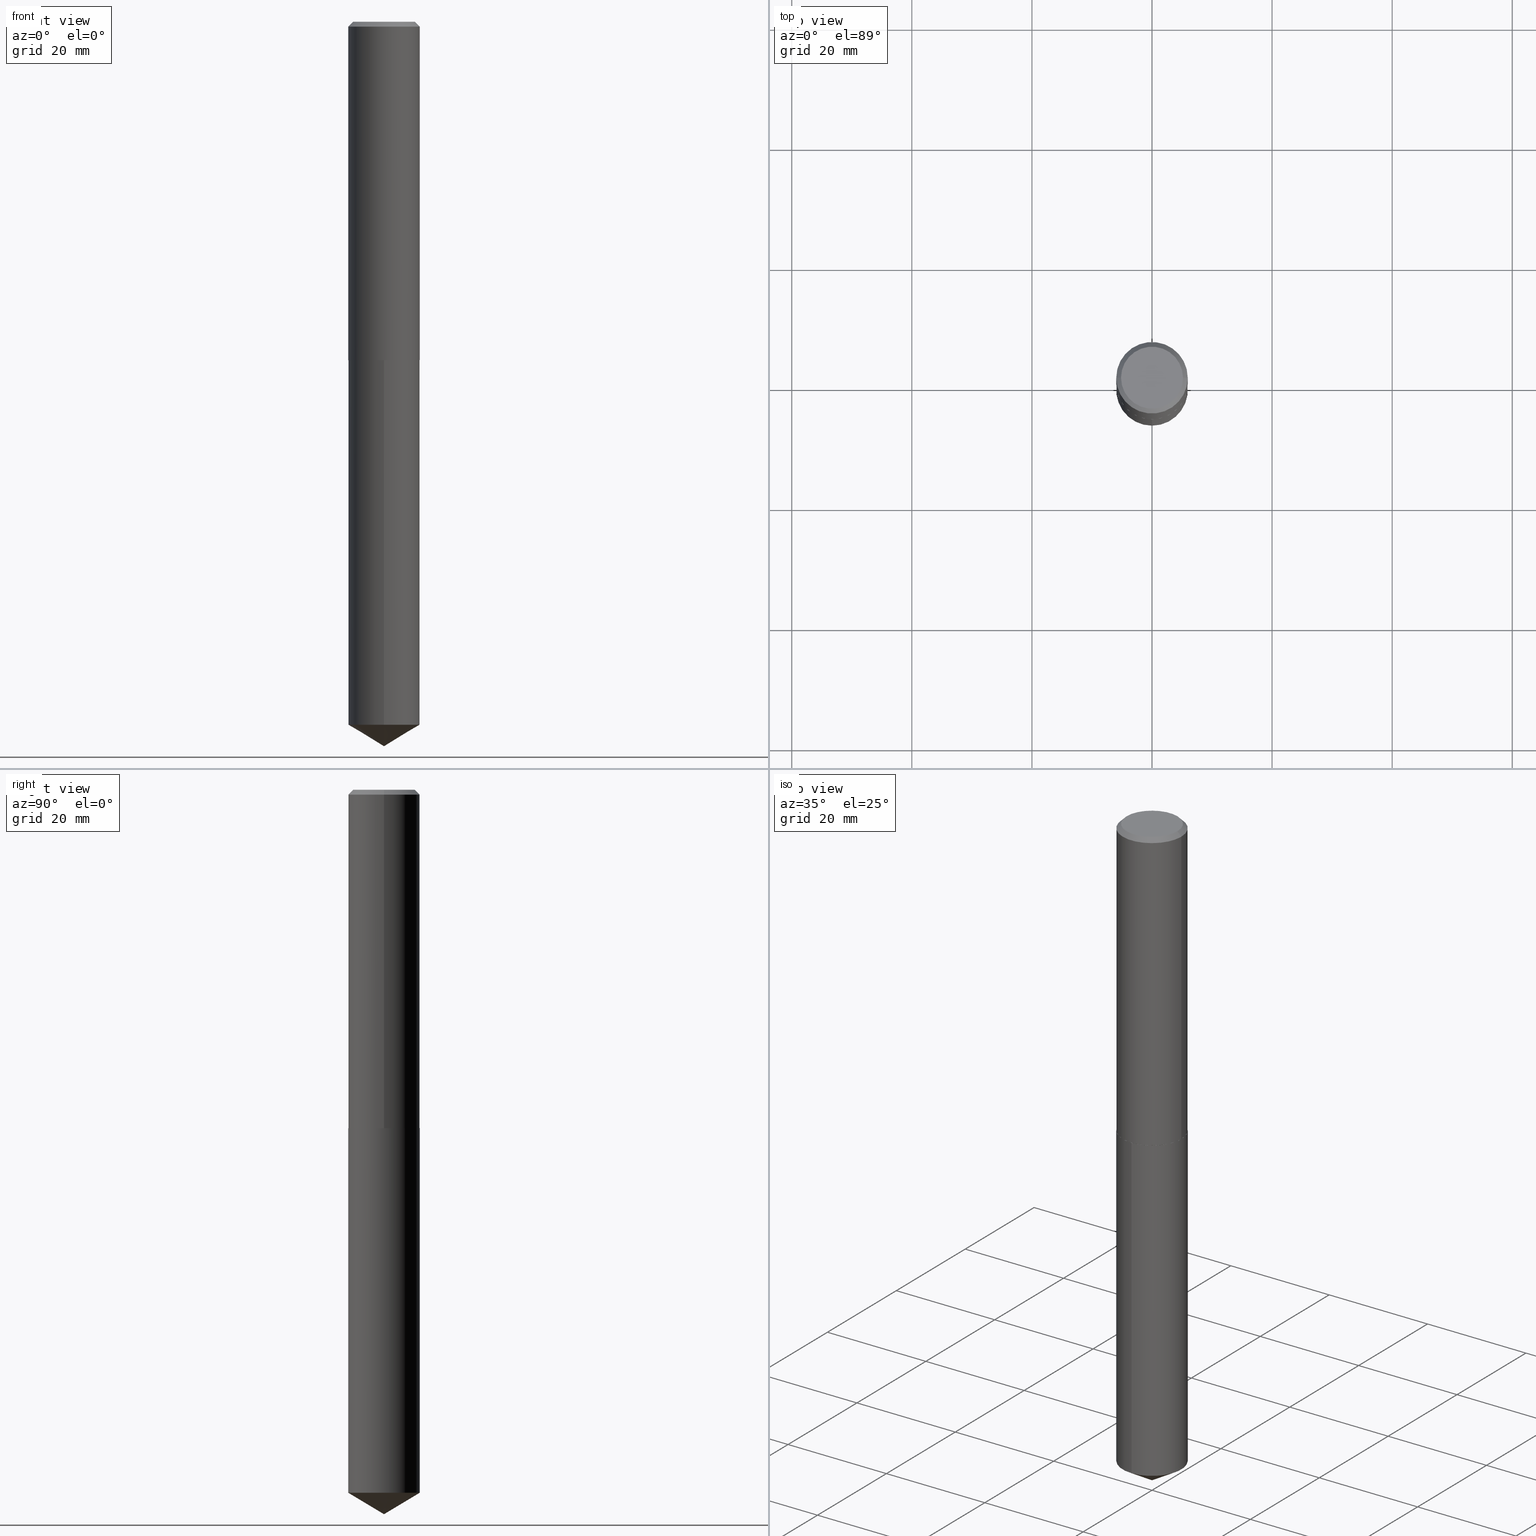
[diagram: canonical four-view strip — front | top / right | iso, engineering-drawing reading convention]
A machine part, canonical four-view strip (front | top / right | iso — engineering-drawing reading convention). The complete STEP part file that produces these views, byte-faithful:
ISO-10303-21;
HEADER;
FILE_DESCRIPTION (( 'STEP AP203' ),
    '1' );
FILE_NAME ('57211.STEP',
    '2024-04-23T00:05:31',
    ( '' ),
    ( '' ),
    'SwSTEP 2.0',
    'SolidWorks 2023',
    '' );
FILE_SCHEMA (( 'CONFIG_CONTROL_DESIGN' ));
ENDSEC;

DATA;
#1 = CARTESIAN_POINT ( 'NONE',  ( 0.2344000000000001638, -1.636806451649662094E-15, 1.142975836246568276E-29 ) ) ;
#2 = ADVANCED_FACE ( 'NONE', ( #176 ), #129, .T. ) ;
#3 = ORIENTED_EDGE ( 'NONE', *, *, #248, .T. ) ;
#4 = DATE_AND_TIME ( #188, #324 ) ;
#5 = DIRECTION ( 'NONE',  ( 1.000000000000000000, -6.982962677686266711E-15, 4.876176775795936353E-29 ) ) ;
#6 = COORDINATED_UNIVERSAL_TIME_OFFSET ( 5, 0, .BEHIND. ) ;
#7 = DIRECTION ( 'NONE',  ( -2.445526104454800886E-29, 3.491399284459771510E-15, 1.000000000000000000 ) ) ;
#8 = CC_DESIGN_PERSON_AND_ORGANIZATION_ASSIGNMENT ( #369, #221, ( #43 ) ) ;
#9 = ADVANCED_BREP_SHAPE_REPRESENTATION ( '57211', ( #329, #59, #317 ), #382 ) ;
#10 = AXIS2_PLACEMENT_3D ( 'NONE', #46, #264, #201 ) ;
#11 = DIRECTION ( 'NONE',  ( 1.000000000000000000, 0.000000000000000000, 0.000000000000000000 ) ) ;
#12 = DIRECTION ( 'NONE',  ( -2.445526104454800886E-29, 3.491399284459771510E-15, 1.000000000000000000 ) ) ;
#13 = CALENDAR_DATE ( 2024, 22, 4 ) ;
#14 = CYLINDRICAL_SURFACE ( 'NONE', #54, 0.2343999999999999972 ) ;
#15 = APPROVAL ( #308, 'UNSPECIFIED' ) ;
#16 = FACE_OUTER_BOUND ( 'NONE', #158, .T. ) ;
#17 = VECTOR ( 'NONE', #39, 39.37007874015748143 ) ;
#18 = CARTESIAN_POINT ( 'NONE',  ( -0.2343999999999999972, -2.261618750275622168E-15, -0.03125000000000022204 ) ) ;
#19 = EDGE_CURVE ( 'NONE', #148, #388, #271, .T. ) ;
#20 = DIRECTION ( 'NONE',  ( 2.445468806185136597E-29, -3.491481338843145583E-15, -1.000000000000000000 ) ) ;
#21 = ORIENTED_EDGE ( 'NONE', *, *, #343, .T. ) ;
#22 = FACE_OUTER_BOUND ( 'NONE', #80, .T. ) ;
#23 = VERTEX_POINT ( 'NONE', #93 ) ;
#24 = EDGE_CURVE ( 'NONE', #148, #33, #272, .T. ) ;
#25 = ORIENTED_EDGE ( 'NONE', *, *, #320, .T. ) ;
#26 = EDGE_CURVE ( 'NONE', #33, #148, #217, .T. ) ;
#27 =( LENGTH_UNIT ( ) NAMED_UNIT ( * ) SI_UNIT ( $, .METRE. ) );
#28 = AXIS2_PLACEMENT_3D ( 'NONE', #166, #126, #70 ) ;
#29 = VERTEX_POINT ( 'NONE', #330 ) ;
#30 = AXIS2_PLACEMENT_3D ( 'NONE', #338, #334, #134 ) ;
#31 = EDGE_CURVE ( 'NONE', #333, #388, #266, .T. ) ;
#32 = ORIENTED_EDGE ( 'NONE', *, *, #350, .T. ) ;
#33 = VERTEX_POINT ( 'NONE', #97 ) ;
#34 = APPROVAL_ROLE ( '' ) ;
#35 = ORIENTED_EDGE ( 'NONE', *, *, #332, .T. ) ;
#36 = CIRCLE ( 'NONE', #372, 0.2343999999999999972 ) ;
#37 = DIRECTION ( 'NONE',  ( -2.445526104454800886E-29, 3.491399284459771510E-15, 1.000000000000000000 ) ) ;
#38 = COORDINATED_UNIVERSAL_TIME_OFFSET ( 5, 0, .BEHIND. ) ;
#39 = DIRECTION ( 'NONE',  ( 6.090539988449784746E-15, 0.8571673007021146651, 0.5150380749100501587 ) ) ;
#40 = APPROVAL ( #66, 'UNSPECIFIED' ) ;
#41 = CARTESIAN_POINT ( 'NONE',  ( 5.424783452760487854E-29, -7.745153053955749600E-15, -2.218300000000000161 ) ) ;
#42 = ORIENTED_EDGE ( 'NONE', *, *, #26, .T. ) ;
#43 = PRODUCT_DEFINITION_FORMATION_WITH_SPECIFIED_SOURCE ( 'ANY', '', #269, .NOT_KNOWN. ) ;
#44 = CARTESIAN_POINT ( 'NONE',  ( 0.000000000000000000, 0.000000000000000000, 0.000000000000000000 ) ) ;
#45 = DIRECTION ( 'NONE',  ( -1.000000000000000000, 6.982962677686266711E-15, 0.000000000000000000 ) ) ;
#46 = CARTESIAN_POINT ( 'NONE',  ( -8.466443343073652800E-28, 1.208723360790609550E-13, 34.62007874015748143 ) ) ;
#47 = FACE_OUTER_BOUND ( 'NONE', #155, .T. ) ;
#48 = CIRCLE ( 'NONE', #286, 0.2343999999999999972 ) ;
#49 = APPROVAL ( #96, 'UNSPECIFIED' ) ;
#50 = VERTEX_POINT ( 'NONE', #101 ) ;
#51 = CARTESIAN_POINT ( 'NONE',  ( 5.424783452760487854E-29, -7.745153053955749600E-15, -2.218300000000000161 ) ) ;
#52 = EDGE_CURVE ( 'NONE', #23, #358, #150, .T. ) ;
#53 = CARTESIAN_POINT ( 'NONE',  ( 7.642090019328606165E-31, -1.091087918388490760E-16, -0.03125000000000022204 ) ) ;
#54 = AXIS2_PLACEMENT_3D ( 'NONE', #67, #7, #254 ) ;
#55 = APPROVAL_PERSON_ORGANIZATION ( #247, #49, #216 ) ;
#56 = ORIENTED_EDGE ( 'NONE', *, *, #385, .F. ) ;
#57 = DATE_AND_TIME ( #364, #123 ) ;
#58 = ORIENTED_EDGE ( 'NONE', *, *, #19, .T. ) ;
#59 = MANIFOLD_SOLID_BREP ( 'Body-Move/Copy2[2]', #62 ) ;
#60 = SECURITY_CLASSIFICATION_LEVEL ( 'unclassified' ) ;
#61 = CARTESIAN_POINT ( 'NONE',  ( 5.426006187163580656E-29, -7.746898794625170315E-15, -2.218799999999999883 ) ) ;
#62 = CLOSED_SHELL ( 'NONE', ( #288, #68, #279, #124, #2, #267, #241, #276 ) ) ;
#63 = AXIS2_PLACEMENT_3D ( 'NONE', #284, #169, #344 ) ;
#64 = DIRECTION ( 'NONE',  ( -6.982962677686265922E-15, -1.000000000000000000, 2.330928322239132474E-15 ) ) ;
#65 = EDGE_CURVE ( 'NONE', #388, #333, #198, .T. ) ;
#66 = APPROVAL_STATUS ( 'not_yet_approved' ) ;
#67 = CARTESIAN_POINT ( 'NONE',  ( 5.426006187163580656E-29, -7.746898794625170315E-15, -2.218799999999999883 ) ) ;
#68 = ADVANCED_FACE ( 'NONE', ( #368 ), #341, .T. ) ;
#69 = APPROVAL_DATE_TIME ( #94, #15 ) ;
#70 = DIRECTION ( 'NONE',  ( 1.000000000000000000, -6.982962677686266711E-15, 0.000000000000000000 ) ) ;
#71 = AXIS2_PLACEMENT_3D ( 'NONE', #61, #185, #165 ) ;
#72 = LOCAL_TIME ( 20, 5, 31.00000000000000000, #38 ) ;
#73 = DIRECTION ( 'NONE',  ( 0.7071067811866923458, -2.468850131083773646E-15, 0.7071067811864025776 ) ) ;
#74 = EDGE_LOOP ( 'NONE', ( #239, #119, #302, #114 ) ) ;
#75 = LINE ( 'NONE', #347, #348 ) ;
#76 = EDGE_LOOP ( 'NONE', ( #172, #42, #58, #353 ) ) ;
#77 = CIRCLE ( 'NONE', #159, 0.2031499999999999972 ) ;
#78 = AXIS2_PLACEMENT_3D ( 'NONE', #377, #374, #227 ) ;
#79 = DIRECTION ( 'NONE',  ( -2.445526104454800605E-29, 3.491399284459771510E-15, 1.000000000000000000 ) ) ;
#80 = EDGE_LOOP ( 'NONE', ( #300, #270, #244 ) ) ;
#81 = CYLINDRICAL_SURFACE ( 'NONE', #262, 0.2344000000000001638 ) ;
#82 = EDGE_CURVE ( 'NONE', #50, #207, #77, .T. ) ;
#83 = CARTESIAN_POINT ( 'NONE',  ( -1.175472951769416574E-47, 1.678263842514570579E-33, 4.806738686653385169E-19 ) ) ;
#84 = LINE ( 'NONE', #115, #274 ) ;
#85 = AXIS2_PLACEMENT_3D ( 'NONE', #205, #261, #105 ) ;
#86 = ORIENTED_EDGE ( 'NONE', *, *, #24, .T. ) ;
#87 = EDGE_CURVE ( 'NONE', #29, #287, #36, .T. ) ;
#88 = DIRECTION ( 'NONE',  ( -2.445468806185136597E-29, 3.491481338843145583E-15, 1.000000000000000000 ) ) ;
#89 = ORIENTED_EDGE ( 'NONE', *, *, #346, .F. ) ;
#90 = ORIENTED_EDGE ( 'NONE', *, *, #209, .T. ) ;
#91 = ORIENTED_EDGE ( 'NONE', *, *, #19, .F. ) ;
#92 = VECTOR ( 'NONE', #235, 39.37007874015748854 ) ;
#93 = CARTESIAN_POINT ( 'NONE',  ( 1.665512172621787426E-15, 0.2343999999999839268, -4.609158270899941456 ) ) ;
#94 = DATE_AND_TIME ( #13, #72 ) ;
#95 = PLANE ( 'NONE',  #30 ) ;
#96 = APPROVAL_STATUS ( 'not_yet_approved' ) ;
#97 = CARTESIAN_POINT ( 'NONE',  ( -0.2344000000000003026, -6.079640881334072812E-15, -2.218300000000000161 ) ) ;
#98 = LENGTH_MEASURE_WITH_UNIT ( LENGTH_MEASURE( 0.02539999999999999897 ), #27 );
#99 = CC_DESIGN_DATE_AND_TIME_ASSIGNMENT ( #4, #214, ( #149 ) ) ;
#100 = PERSON_AND_ORGANIZATION ( #236, #389 ) ;
#101 = CARTESIAN_POINT ( 'NONE',  ( -0.2031499999999999972, 1.473143263891388443E-15, 9.613477373205657090E-19 ) ) ;
#102 = CARTESIAN_POINT ( 'NONE',  ( 5.426006187163580656E-29, -7.746898794625170315E-15, -2.218799999999999883 ) ) ;
#103 = CC_DESIGN_APPROVAL ( #40, ( #149 ) ) ;
#104 = LINE ( 'NONE', #323, #231 ) ;
#105 = DIRECTION ( 'NONE',  ( -6.982962677686265922E-15, -1.000000000000000000, 3.496392483358698711E-15 ) ) ;
#106 = CC_DESIGN_PERSON_AND_ORGANIZATION_ASSIGNMENT ( #132, #125, ( #149 ) ) ;
#107 = DIRECTION ( 'NONE',  ( 1.000000000000000000, -6.982962677686266711E-15, 4.876176775795936353E-29 ) ) ;
#108 = EDGE_LOOP ( 'NONE', ( #376, #25 ) ) ;
#109 = EDGE_CURVE ( 'NONE', #243, #23, #371, .T. ) ;
#110 = VECTOR ( 'NONE', #117, 39.37007874015748143 ) ;
#111 = CIRCLE ( 'NONE', #331, 0.2339000000000001911 ) ;
#112 = CARTESIAN_POINT ( 'NONE',  ( 0.2339000000000001911, -9.380213764935990585E-15, -2.218799999999999883 ) ) ;
#113 = CARTESIAN_POINT ( 'NONE',  ( 1.665512172621787623E-15, 0.2343999999999922534, -2.218800000000000772 ) ) ;
#114 = ORIENTED_EDGE ( 'NONE', *, *, #248, .F. ) ;
#115 = CARTESIAN_POINT ( 'NONE',  ( -0.2344000000000001638, 1.665512172621675999E-15, -1.152998385155750805E-29 ) ) ;
#116 = CONICAL_SURFACE ( 'NONE', #78, 65.52281426576860213, 1.029744258676655644 ) ;
#117 = DIRECTION ( 'NONE',  ( -2.445468806185136877E-29, 3.491481338843145188E-15, 1.000000000000000000 ) ) ;
#118 = CARTESIAN_POINT ( 'NONE',  ( 5.424783452760487854E-29, -7.745153053955749600E-15, -2.218300000000000161 ) ) ;
#119 = ORIENTED_EDGE ( 'NONE', *, *, #52, .T. ) ;
#120 = DIRECTION ( 'NONE',  ( -2.445468806185136877E-29, 3.491481338843145188E-15, 1.000000000000000000 ) ) ;
#121 = ORIENTED_EDGE ( 'NONE', *, *, #24, .F. ) ;
#122 = VECTOR ( 'NONE', #73, 39.37007874015748854 ) ;
#123 = LOCAL_TIME ( 20, 5, 31.00000000000000000, #6 ) ;
#124 = ADVANCED_FACE ( 'NONE', ( #281 ), #95, .F. ) ;
#125 = PERSON_AND_ORGANIZATION_ROLE ( 'creator' ) ;
#126 = DIRECTION ( 'NONE',  ( -2.445468806185136597E-29, 3.491481338843145583E-15, 1.000000000000000000 ) ) ;
#127 = COORDINATED_UNIVERSAL_TIME_OFFSET ( 5, 0, .BEHIND. ) ;
#128 = FACE_OUTER_BOUND ( 'NONE', #196, .T. ) ;
#129 = CONICAL_SURFACE ( 'NONE', #144, 0.2344000000000003026, 0.7853981633976532262 ) ;
#130 = AXIS2_PLACEMENT_3D ( 'NONE', #41, #384, #292 ) ;
#131 = PLANE ( 'NONE',  #179 ) ;
#132 = PERSON_AND_ORGANIZATION ( #236, #389 ) ;
#133 = PRODUCT_DEFINITION_SHAPE ( 'NONE', 'NONE',  #149 ) ;
#134 = DIRECTION ( 'NONE',  ( 1.000000000000000000, -6.982962677686265922E-15, 4.876176775795935793E-29 ) ) ;
#135 = ADVANCED_FACE ( 'NONE', ( #219 ), #161, .T. ) ;
#136 = CARTESIAN_POINT ( 'NONE',  ( 1.127168973764882350E-28, -1.609259395124771835E-14, -4.609158270899939680 ) ) ;
#137 = AXIS2_PLACEMENT_3D ( 'NONE', #351, #342, #45 ) ;
#138 = FACE_OUTER_BOUND ( 'NONE', #361, .T. ) ;
#139 = EDGE_LOOP ( 'NONE', ( #86, #258, #325, #91 ) ) ;
#140 = SHAPE_DEFINITION_REPRESENTATION ( #133, #9 ) ;
#141 = FACE_OUTER_BOUND ( 'NONE', #208, .T. ) ;
#142 = ORIENTED_EDGE ( 'NONE', *, *, #313, .T. ) ;
#143 = CARTESIAN_POINT ( 'NONE',  ( -1.636806451649606282E-15, -0.2344000000000077411, -2.218799999999998995 ) ) ;
#144 = AXIS2_PLACEMENT_3D ( 'NONE', #118, #240, #157 ) ;
#145 = APPROVAL_PERSON_ORGANIZATION ( #277, #40, #34 ) ;
#146 = LOCAL_TIME ( 20, 5, 31.00000000000000000, #383 ) ;
#147 = CARTESIAN_POINT ( 'NONE',  ( 0.2343999999999999972, -1.717209522516496106E-15, -0.03125000000000022204 ) ) ;
#148 = VERTEX_POINT ( 'NONE', #283 ) ;
#149 = PRODUCT_DEFINITION ( 'UNKNOWN', '', #43, #223 ) ;
#150 = CIRCLE ( 'NONE', #366, 0.2343999999999999972 ) ;
#151 = CONICAL_SURFACE ( 'NONE', #10, 65.52281426576860213, 1.029744258676655644 ) ;
#152 = CC_DESIGN_APPROVAL ( #49, ( #337 ) ) ;
#153 = ORIENTED_EDGE ( 'NONE', *, *, #193, .T. ) ;
#154 = APPLICATION_CONTEXT ( 'configuration controlled 3d designs of mechanical parts and assemblies' ) ;
#155 = EDGE_LOOP ( 'NONE', ( #32, #210, #121, #212 ) ) ;
#156 = CARTESIAN_POINT ( 'NONE',  ( 0.2343999999999999972, -1.745915243488510011E-15, -0.03125000000000022204 ) ) ;
#157 = DIRECTION ( 'NONE',  ( 1.000000000000000000, -6.982962677686265133E-15, 0.000000000000000000 ) ) ;
#158 = EDGE_LOOP ( 'NONE', ( #178, #153, #349, #181 ) ) ;
#159 = AXIS2_PLACEMENT_3D ( 'NONE', #246, #310, #190 ) ;
#160 =( NAMED_UNIT ( * ) PLANE_ANGLE_UNIT ( ) SI_UNIT ( $, .RADIAN. ) );
#161 = CYLINDRICAL_SURFACE ( 'NONE', #71, 0.2343999999999999972 ) ;
#162 =( CONVERSION_BASED_UNIT ( 'INCH', #98 ) LENGTH_UNIT ( ) NAMED_UNIT ( #322 ) );
#163 = CARTESIAN_POINT ( 'NONE',  ( 0.000000000000000000, 0.000000000000000000, 0.000000000000000000 ) ) ;
#164 = APPLICATION_PROTOCOL_DEFINITION ( 'international standard', 'config_control_design', 1994, #204 ) ;
#165 = DIRECTION ( 'NONE',  ( -6.982962677686265922E-15, -1.000000000000000000, 3.496392483358698711E-15 ) ) ;
#166 = CARTESIAN_POINT ( 'NONE',  ( 7.642090019328606165E-31, -1.091087918388490760E-16, -0.03125000000000022204 ) ) ;
#167 = EDGE_CURVE ( 'NONE', #294, #202, #174, .T. ) ;
#168 = DATE_AND_TIME ( #314, #146 ) ;
#169 = DIRECTION ( 'NONE',  ( -2.445468806185136597E-29, 3.491481338843145583E-15, 1.000000000000000000 ) ) ;
#170 = CARTESIAN_POINT ( 'NONE',  ( 1.161624899616030533E-28, -1.658414660118391467E-14, -4.750000000000000000 ) ) ;
#171 = LINE ( 'NONE', #143, #336 ) ;
#172 = ORIENTED_EDGE ( 'NONE', *, *, #375, .F. ) ;
#173 = FACE_OUTER_BOUND ( 'NONE', #108, .T. ) ;
#174 = CIRCLE ( 'NONE', #359, 0.2339000000000001911 ) ;
#175 = CARTESIAN_POINT ( 'NONE',  ( -1.636806451649548104E-15, -0.2344000000000160955, -4.609158270899938792 ) ) ;
#176 = FACE_OUTER_BOUND ( 'NONE', #237, .T. ) ;
#177 = ADVANCED_FACE ( 'NONE', ( #306 ), #14, .T. ) ;
#178 = ORIENTED_EDGE ( 'NONE', *, *, #320, .F. ) ;
#179 = AXIS2_PLACEMENT_3D ( 'NONE', #102, #252, #195 ) ;
#180 = DIRECTION ( 'NONE',  ( -2.445468806185136597E-29, 3.491481338843145583E-15, 1.000000000000000000 ) ) ;
#181 = ORIENTED_EDGE ( 'NONE', *, *, #313, .F. ) ;
#182 = PERSON_AND_ORGANIZATION ( #236, #389 ) ;
#183 = ORIENTED_EDGE ( 'NONE', *, *, #167, .F. ) ;
#184 = PERSON_AND_ORGANIZATION_ROLE ( 'creator' ) ;
#185 = DIRECTION ( 'NONE',  ( -2.445526104454800886E-29, 3.491399284459771510E-15, 1.000000000000000000 ) ) ;
#186 = ADVANCED_FACE ( 'NONE', ( #128 ), #131, .F. ) ;
#187 = DIRECTION ( 'NONE',  ( -2.445468806185136597E-29, 3.491481338843145583E-15, 1.000000000000000000 ) ) ;
#188 = CALENDAR_DATE ( 2024, 22, 4 ) ;
#189 = COORDINATED_UNIVERSAL_TIME_OFFSET ( 5, 0, .BEHIND. ) ;
#190 = DIRECTION ( 'NONE',  ( 1.000000000000000000, -6.982962677686265922E-15, 4.876167103785456779E-29 ) ) ;
#191 = LOCAL_TIME ( 20, 5, 31.00000000000000000, #189 ) ;
#192 = DIRECTION ( 'NONE',  ( -2.445468806185136597E-29, 3.491481338843145583E-15, 1.000000000000000000 ) ) ;
#193 = EDGE_CURVE ( 'NONE', #207, #388, #259, .T. ) ;
#194 = APPROVAL_DATE_TIME ( #168, #49 ) ;
#195 = DIRECTION ( 'NONE',  ( 6.982962677686265922E-15, 1.000000000000000000, -3.491399284459771510E-15 ) ) ;
#196 = EDGE_LOOP ( 'NONE', ( #275, #3 ) ) ;
#197 = CARTESIAN_POINT ( 'NONE',  ( 0.2344000000000003026, -9.381959505605412877E-15, -2.218300000000000161 ) ) ;
#198 = CIRCLE ( 'NONE', #28, 0.2343999999999999972 ) ;
#199 = CC_DESIGN_DATE_AND_TIME_ASSIGNMENT ( #57, #303, ( #337 ) ) ;
#200 = CC_DESIGN_SECURITY_CLASSIFICATION ( #337, ( #43 ) ) ;
#201 = DIRECTION ( 'NONE',  ( -6.982962677686265922E-15, -1.000000000000000000, 3.468864327941585142E-15 ) ) ;
#202 = VERTEX_POINT ( 'NONE', #112 ) ;
#203 = LINE ( 'NONE', #373, #238 ) ;
#204 = APPLICATION_CONTEXT ( 'configuration controlled 3d designs of mechanical parts and assemblies' ) ;
#205 = CARTESIAN_POINT ( 'NONE',  ( 5.426006187163580656E-29, -7.746898794625170315E-15, -2.218799999999999883 ) ) ;
#206 = CONICAL_SURFACE ( 'NONE', #137, 0.2343999999999999972, 0.7853981633974449483 ) ;
#207 = VERTEX_POINT ( 'NONE', #319 ) ;
#208 = EDGE_LOOP ( 'NONE', ( #299, #326, #142, #230 ) ) ;
#209 = EDGE_CURVE ( 'NONE', #243, #358, #203, .T. ) ;
#210 = ORIENTED_EDGE ( 'NONE', *, *, #385, .T. ) ;
#211 = CARTESIAN_POINT ( 'NONE',  ( 5.426006187163580656E-29, -7.746898794625170315E-15, -2.218799999999999883 ) ) ;
#212 = ORIENTED_EDGE ( 'NONE', *, *, #245, .F. ) ;
#213 = DIRECTION ( 'NONE',  ( -2.445468806185136597E-29, 3.491481338843145583E-15, 1.000000000000000000 ) ) ;
#214 = DATE_TIME_ROLE ( 'creation_date' ) ;
#215 = CARTESIAN_POINT ( 'NONE',  ( 1.161625122578001343E-28, -1.658414660118391467E-14, -4.750000000000000000 ) ) ;
#216 = APPROVAL_ROLE ( '' ) ;
#217 = CIRCLE ( 'NONE', #381, 0.2344000000000003026 ) ;
#218 = AXIS2_PLACEMENT_3D ( 'NONE', #83, #311, #315 ) ;
#219 = FACE_OUTER_BOUND ( 'NONE', #265, .T. ) ;
#220 = CC_DESIGN_PERSON_AND_ORGANIZATION_ASSIGNMENT ( #251, #184, ( #43 ) ) ;
#221 = PERSON_AND_ORGANIZATION_ROLE ( 'design_supplier' ) ;
#222 = CARTESIAN_POINT ( 'NONE',  ( 1.127168973764882350E-28, -1.609259395124771835E-14, -4.609158270899939680 ) ) ;
#223 = DESIGN_CONTEXT ( 'detailed design', #154, 'design' ) ;
#224 = DIRECTION ( 'NONE',  ( 1.000000000000000000, -6.982962677686265922E-15, 0.000000000000000000 ) ) ;
#225 = CONICAL_SURFACE ( 'NONE', #130, 0.2344000000000003026, 0.7853981633976532262 ) ;
#226 = FACE_OUTER_BOUND ( 'NONE', #76, .T. ) ;
#227 = DIRECTION ( 'NONE',  ( -6.982962677686265922E-15, -1.000000000000000000, 3.468864327941585142E-15 ) ) ;
#228 = ORIENTED_EDGE ( 'NONE', *, *, #245, .T. ) ;
#229 = CARTESIAN_POINT ( 'NONE',  ( -0.2339000000000001911, -6.082290108508184013E-15, -2.218799999999999883 ) ) ;
#230 = ORIENTED_EDGE ( 'NONE', *, *, #31, .T. ) ;
#231 = VECTOR ( 'NONE', #380, 39.37007874015748143 ) ;
#232 = APPROVAL_PERSON_ORGANIZATION ( #182, #15, #362 ) ;
#233 = LINE ( 'NONE', #197, #122 ) ;
#234 = DIRECTION ( 'NONE',  ( 0.7071067811865451302, -7.319954787623248157E-15, -0.7071067811865499042 ) ) ;
#235 = DIRECTION ( 'NONE',  ( -0.7071067811866923458, 7.493145998870876386E-15, 0.7071067811864025776 ) ) ;
#236 = PERSON ( 'UNSPECIFIED', 'UNSPECIFIED', 'UNSPECIFIED', ('UNSPECIFIED'), ('UNSPECIFIED'), ('UNSPECIFIED') ) ;
#237 = EDGE_LOOP ( 'NONE', ( #56, #318, #228, #312 ) ) ;
#238 = VECTOR ( 'NONE', #321, 39.37007874015748143 ) ;
#239 = ORIENTED_EDGE ( 'NONE', *, *, #343, .F. ) ;
#240 = DIRECTION ( 'NONE',  ( -2.445468806185136597E-29, 3.491481338843145583E-15, 1.000000000000000000 ) ) ;
#241 = ADVANCED_FACE ( 'NONE', ( #141 ), #206, .T. ) ;
#242 = DIRECTION ( 'NONE',  ( 1.000000000000000000, -6.982962677686265922E-15, 0.000000000000000000 ) ) ;
#243 = VERTEX_POINT ( 'NONE', #170 ) ;
#244 = ORIENTED_EDGE ( 'NONE', *, *, #332, .F. ) ;
#245 = EDGE_CURVE ( 'NONE', #202, #148, #233, .T. ) ;
#246 = CARTESIAN_POINT ( 'NONE',  ( -2.350945903538833148E-47, 3.356527685029141157E-33, 9.613477373306770338E-19 ) ) ;
#247 = PERSON_AND_ORGANIZATION ( #236, #389 ) ;
#248 = EDGE_CURVE ( 'NONE', #287, #29, #354, .T. ) ;
#249 = MECHANICAL_CONTEXT ( 'NONE', #204, 'mechanical' ) ;
#250 = AXIS2_PLACEMENT_3D ( 'NONE', #257, #20, #289 ) ;
#251 = PERSON_AND_ORGANIZATION ( #236, #389 ) ;
#252 = DIRECTION ( 'NONE',  ( 2.445526104454800325E-29, -3.491399284459771510E-15, -1.000000000000000000 ) ) ;
#253 = PERSON_AND_ORGANIZATION_ROLE ( 'classification_officer' ) ;
#254 = DIRECTION ( 'NONE',  ( -6.982962677686265922E-15, -1.000000000000000000, 3.496392483358698711E-15 ) ) ;
#255 = DIRECTION ( 'NONE',  ( -2.445526104454800886E-29, 3.491399284459771510E-15, 1.000000000000000000 ) ) ;
#256 = ADVANCED_FACE ( 'NONE', ( #22 ), #151, .T. ) ;
#257 = CARTESIAN_POINT ( 'NONE',  ( 7.642090019328606165E-31, -1.091087918388490760E-16, -0.03125000000000022204 ) ) ;
#258 = ORIENTED_EDGE ( 'NONE', *, *, #375, .T. ) ;
#259 = LINE ( 'NONE', #147, #293 ) ;
#260 = ORIENTED_EDGE ( 'NONE', *, *, #52, .F. ) ;
#261 = DIRECTION ( 'NONE',  ( -2.445526104454800886E-29, 3.491399284459771510E-15, 1.000000000000000000 ) ) ;
#262 = AXIS2_PLACEMENT_3D ( 'NONE', #44, #290, #107 ) ;
#263 = CC_DESIGN_APPROVAL ( #15, ( #43 ) ) ;
#264 = DIRECTION ( 'NONE',  ( -2.445526104454800886E-29, 3.491399284459771510E-15, 1.000000000000000000 ) ) ;
#265 = EDGE_LOOP ( 'NONE', ( #35, #21, #357, #89 ) ) ;
#266 = CIRCLE ( 'NONE', #316, 0.2343999999999999972 ) ;
#267 = ADVANCED_FACE ( 'NONE', ( #226 ), #81, .T. ) ;
#268 = DIRECTION ( 'NONE',  ( -2.445468806185136597E-29, 3.491481338843145583E-15, 1.000000000000000000 ) ) ;
#269 = PRODUCT ( '57211', '57211', '', ( #249 ) ) ;
#270 = ORIENTED_EDGE ( 'NONE', *, *, #109, .T. ) ;
#271 = LINE ( 'NONE', #1, #110 ) ;
#272 = CIRCLE ( 'NONE', #340, 0.2344000000000003026 ) ;
#273 = APPLICATION_PROTOCOL_DEFINITION ( 'international standard', 'config_control_design', 1994, #154 ) ;
#274 = VECTOR ( 'NONE', #120, 39.37007874015748143 ) ;
#275 = ORIENTED_EDGE ( 'NONE', *, *, #87, .T. ) ;
#276 = ADVANCED_FACE ( 'NONE', ( #173 ), #352, .F. ) ;
#277 = PERSON_AND_ORGANIZATION ( #236, #389 ) ;
#278 = CARTESIAN_POINT ( 'NONE',  ( 5.426006187163580656E-29, -7.746898794625170315E-15, -2.218799999999999883 ) ) ;
#279 = ADVANCED_FACE ( 'NONE', ( #47 ), #225, .T. ) ;
#280 = CALENDAR_DATE ( 2024, 22, 4 ) ;
#281 = FACE_OUTER_BOUND ( 'NONE', #345, .T. ) ;
#282 = APPROVAL_DATE_TIME ( #307, #40 ) ;
#283 = CARTESIAN_POINT ( 'NONE',  ( 0.2344000000000003026, -9.381959505605412877E-15, -2.218300000000000161 ) ) ;
#284 = CARTESIAN_POINT ( 'NONE',  ( -2.350945903538833148E-47, 3.356527685029141157E-33, 9.613477373306770338E-19 ) ) ;
#285 = DIRECTION ( 'NONE',  ( -6.982962677686265922E-15, -1.000000000000000000, 2.330928322239132474E-15 ) ) ;
#286 = AXIS2_PLACEMENT_3D ( 'NONE', #136, #255, #285 ) ;
#287 = VERTEX_POINT ( 'NONE', #113 ) ;
#288 = ADVANCED_FACE ( 'NONE', ( #16 ), #367, .T. ) ;
#289 = DIRECTION ( 'NONE',  ( -1.000000000000000000, 6.982962677686266711E-15, 0.000000000000000000 ) ) ;
#290 = DIRECTION ( 'NONE',  ( -2.445468806185136597E-29, 3.491481338843145583E-15, 1.000000000000000000 ) ) ;
#291 = ORIENTED_EDGE ( 'NONE', *, *, #350, .F. ) ;
#292 = DIRECTION ( 'NONE',  ( 1.000000000000000000, -6.982962677686265133E-15, 0.000000000000000000 ) ) ;
#293 = VECTOR ( 'NONE', #234, 39.37007874015748143 ) ;
#294 = VERTEX_POINT ( 'NONE', #229 ) ;
#295 = CC_DESIGN_PERSON_AND_ORGANIZATION_ASSIGNMENT ( #301, #339, ( #269 ) ) ;
#296 = CARTESIAN_POINT ( 'NONE',  ( 5.424783452760487854E-29, -7.745153053955749600E-15, -2.218300000000000161 ) ) ;
#297 = AXIS2_PLACEMENT_3D ( 'NONE', #304, #192, #5 ) ;
#298 = CIRCLE ( 'NONE', #63, 0.2031499999999999972 ) ;
#299 = ORIENTED_EDGE ( 'NONE', *, *, #193, .F. ) ;
#300 = ORIENTED_EDGE ( 'NONE', *, *, #209, .F. ) ;
#301 = PERSON_AND_ORGANIZATION ( #236, #389 ) ;
#302 = ORIENTED_EDGE ( 'NONE', *, *, #346, .T. ) ;
#303 = DATE_TIME_ROLE ( 'classification_date' ) ;
#304 = CARTESIAN_POINT ( 'NONE',  ( 0.000000000000000000, 0.000000000000000000, 0.000000000000000000 ) ) ;
#305 =( NAMED_UNIT ( * ) SI_UNIT ( $, .STERADIAN. ) SOLID_ANGLE_UNIT ( ) );
#306 = FACE_OUTER_BOUND ( 'NONE', #74, .T. ) ;
#307 = DATE_AND_TIME ( #280, #191 ) ;
#308 = APPROVAL_STATUS ( 'not_yet_approved' ) ;
#309 = DIRECTION ( 'NONE',  ( -6.982962677686265922E-15, -1.000000000000000000, 3.496392483358698711E-15 ) ) ;
#310 = DIRECTION ( 'NONE',  ( -2.445468806185136597E-29, 3.491481338843145583E-15, 1.000000000000000000 ) ) ;
#311 = DIRECTION ( 'NONE',  ( 2.438088387897960049E-29, -3.491481338843145188E-15, -1.000000000000000000 ) ) ;
#312 = ORIENTED_EDGE ( 'NONE', *, *, #26, .F. ) ;
#313 = EDGE_CURVE ( 'NONE', #50, #333, #104, .T. ) ;
#314 = CALENDAR_DATE ( 2024, 22, 4 ) ;
#315 = DIRECTION ( 'NONE',  ( -1.000000000000000000, 6.982962677686265922E-15, -4.876176775795935793E-29 ) ) ;
#316 = AXIS2_PLACEMENT_3D ( 'NONE', #53, #180, #365 ) ;
#317 = AXIS2_PLACEMENT_3D ( 'NONE', #163, #370, #11 ) ;
#318 = ORIENTED_EDGE ( 'NONE', *, *, #167, .T. ) ;
#319 = CARTESIAN_POINT ( 'NONE',  ( 0.2031499999999999972, -1.555459845381891375E-15, 9.613477373410758999E-19 ) ) ;
#320 = EDGE_CURVE ( 'NONE', #207, #50, #298, .T. ) ;
#321 = DIRECTION ( 'NONE',  ( -5.985567269335947590E-15, -0.8571673007021111124, 0.5150380749100561539 ) ) ;
#322 = DIMENSIONAL_EXPONENTS ( 1.000000000000000000, 0.000000000000000000, 0.000000000000000000, 0.000000000000000000, 0.000000000000000000, 0.000000000000000000, 0.000000000000000000 ) ;
#323 = CARTESIAN_POINT ( 'NONE',  ( -0.2343999999999999972, 1.527697659810811810E-15, -0.03125000000000022204 ) ) ;
#324 = LOCAL_TIME ( 20, 5, 31.00000000000000000, #127 ) ;
#325 = ORIENTED_EDGE ( 'NONE', *, *, #65, .F. ) ;
#326 = ORIENTED_EDGE ( 'NONE', *, *, #82, .F. ) ;
#327 = CC_DESIGN_PERSON_AND_ORGANIZATION_ASSIGNMENT ( #100, #253, ( #337 ) ) ;
#328 = DIRECTION ( 'NONE',  ( -2.445526104454800605E-29, 3.491399284459771510E-15, 1.000000000000000000 ) ) ;
#329 = MANIFOLD_SOLID_BREP ( 'Body-Move/Copy2[1]', #387 ) ;
#330 = CARTESIAN_POINT ( 'NONE',  ( -1.636806451649606282E-15, -0.2344000000000077411, -2.218799999999998995 ) ) ;
#331 = AXIS2_PLACEMENT_3D ( 'NONE', #211, #88, #242 ) ;
#332 = EDGE_CURVE ( 'NONE', #358, #23, #48, .T. ) ;
#333 = VERTEX_POINT ( 'NONE', #18 ) ;
#334 = DIRECTION ( 'NONE',  ( -2.438088387897960049E-29, 3.491481338843145188E-15, 1.000000000000000000 ) ) ;
#335 = ADVANCED_FACE ( 'NONE', ( #138 ), #116, .T. ) ;
#336 = VECTOR ( 'NONE', #328, 39.37007874015748143 ) ;
#337 = SECURITY_CLASSIFICATION ( '', '', #60 ) ;
#338 = CARTESIAN_POINT ( 'NONE',  ( 5.426006187163580656E-29, -7.746898794625170315E-15, -2.218799999999999883 ) ) ;
#339 = PERSON_AND_ORGANIZATION_ROLE ( 'design_owner' ) ;
#340 = AXIS2_PLACEMENT_3D ( 'NONE', #296, #213, #356 ) ;
#341 = CYLINDRICAL_SURFACE ( 'NONE', #297, 0.2344000000000001638 ) ;
#342 = DIRECTION ( 'NONE',  ( 2.445468806185136597E-29, -3.491481338843145583E-15, -1.000000000000000000 ) ) ;
#343 = EDGE_CURVE ( 'NONE', #23, #287, #75, .T. ) ;
#344 = DIRECTION ( 'NONE',  ( 1.000000000000000000, -6.982962677686265922E-15, 4.876167103785456779E-29 ) ) ;
#345 = EDGE_LOOP ( 'NONE', ( #291, #183 ) ) ;
#346 = EDGE_CURVE ( 'NONE', #358, #29, #171, .T. ) ;
#347 = CARTESIAN_POINT ( 'NONE',  ( 1.665512172621728853E-15, 0.2343999999999922534, -2.218800000000000772 ) ) ;
#348 = VECTOR ( 'NONE', #79, 39.37007874015748143 ) ;
#349 = ORIENTED_EDGE ( 'NONE', *, *, #65, .T. ) ;
#350 = EDGE_CURVE ( 'NONE', #202, #294, #111, .T. ) ;
#351 = CARTESIAN_POINT ( 'NONE',  ( 7.642090019328606165E-31, -1.091087918388490760E-16, -0.03125000000000022204 ) ) ;
#352 = PLANE ( 'NONE',  #218 ) ;
#353 = ORIENTED_EDGE ( 'NONE', *, *, #31, .F. ) ;
#354 = CIRCLE ( 'NONE', #85, 0.2343999999999999972 ) ;
#355 = LINE ( 'NONE', #386, #92 ) ;
#356 = DIRECTION ( 'NONE',  ( 1.000000000000000000, -6.982962677686265133E-15, 0.000000000000000000 ) ) ;
#357 = ORIENTED_EDGE ( 'NONE', *, *, #87, .F. ) ;
#358 = VERTEX_POINT ( 'NONE', #175 ) ;
#359 = AXIS2_PLACEMENT_3D ( 'NONE', #278, #187, #224 ) ;
#360 = PRODUCT_RELATED_PRODUCT_CATEGORY ( 'detail', '', ( #269 ) ) ;
#361 = EDGE_LOOP ( 'NONE', ( #378, #90, #260 ) ) ;
#362 = APPROVAL_ROLE ( '' ) ;
#363 = CARTESIAN_POINT ( 'NONE',  ( 5.426006187163580656E-29, -7.746898794625170315E-15, -2.218799999999999883 ) ) ;
#364 = CALENDAR_DATE ( 2024, 22, 4 ) ;
#365 = DIRECTION ( 'NONE',  ( 1.000000000000000000, -6.982962677686266711E-15, 0.000000000000000000 ) ) ;
#366 = AXIS2_PLACEMENT_3D ( 'NONE', #222, #12, #64 ) ;
#367 = CONICAL_SURFACE ( 'NONE', #250, 0.2343999999999999972, 0.7853981633974449483 ) ;
#368 = FACE_OUTER_BOUND ( 'NONE', #139, .T. ) ;
#369 = PERSON_AND_ORGANIZATION ( #236, #389 ) ;
#370 = DIRECTION ( 'NONE',  ( 0.000000000000000000, 0.000000000000000000, 1.000000000000000000 ) ) ;
#371 = LINE ( 'NONE', #215, #17 ) ;
#372 = AXIS2_PLACEMENT_3D ( 'NONE', #363, #37, #309 ) ;
#373 = CARTESIAN_POINT ( 'NONE',  ( 1.161599472935884330E-28, -1.658451072571557418E-14, -4.750000000000000000 ) ) ;
#374 = DIRECTION ( 'NONE',  ( -2.445526104454800886E-29, 3.491399284459771510E-15, 1.000000000000000000 ) ) ;
#375 = EDGE_CURVE ( 'NONE', #33, #333, #84, .T. ) ;
#376 = ORIENTED_EDGE ( 'NONE', *, *, #82, .T. ) ;
#377 = CARTESIAN_POINT ( 'NONE',  ( -8.466443343073652800E-28, 1.208723360790609550E-13, 34.62007874015748143 ) ) ;
#378 = ORIENTED_EDGE ( 'NONE', *, *, #109, .F. ) ;
#379 = UNCERTAINTY_MEASURE_WITH_UNIT (LENGTH_MEASURE( 1.000000000000000082E-05 ), #162, 'distance_accuracy_value', 'NONE');
#380 = DIRECTION ( 'NONE',  ( -0.7071067811865451302, 2.468850131082231817E-15, -0.7071067811865499042 ) ) ;
#381 = AXIS2_PLACEMENT_3D ( 'NONE', #51, #268, #390 ) ;
#382 =( GEOMETRIC_REPRESENTATION_CONTEXT ( 3 ) GLOBAL_UNCERTAINTY_ASSIGNED_CONTEXT ( ( #379 ) ) GLOBAL_UNIT_ASSIGNED_CONTEXT ( ( #162, #160, #305 ) ) REPRESENTATION_CONTEXT ( 'NONE', 'WORKASPACE' ) );
#383 = COORDINATED_UNIVERSAL_TIME_OFFSET ( 5, 0, .BEHIND. ) ;
#384 = DIRECTION ( 'NONE',  ( -2.445468806185136597E-29, 3.491481338843145583E-15, 1.000000000000000000 ) ) ;
#385 = EDGE_CURVE ( 'NONE', #294, #33, #355, .T. ) ;
#386 = CARTESIAN_POINT ( 'NONE',  ( -0.2344000000000003026, -6.079640881334072812E-15, -2.218300000000000161 ) ) ;
#387 = CLOSED_SHELL ( 'NONE', ( #135, #256, #335, #177, #186 ) ) ;
#388 = VERTEX_POINT ( 'NONE', #156 ) ;
#389 = ORGANIZATION ( 'UNSPECIFIED', 'UNSPECIFIED', '' ) ;
#390 = DIRECTION ( 'NONE',  ( 1.000000000000000000, -6.982962677686265133E-15, 0.000000000000000000 ) ) ;
ENDSEC;
END-ISO-10303-21;
